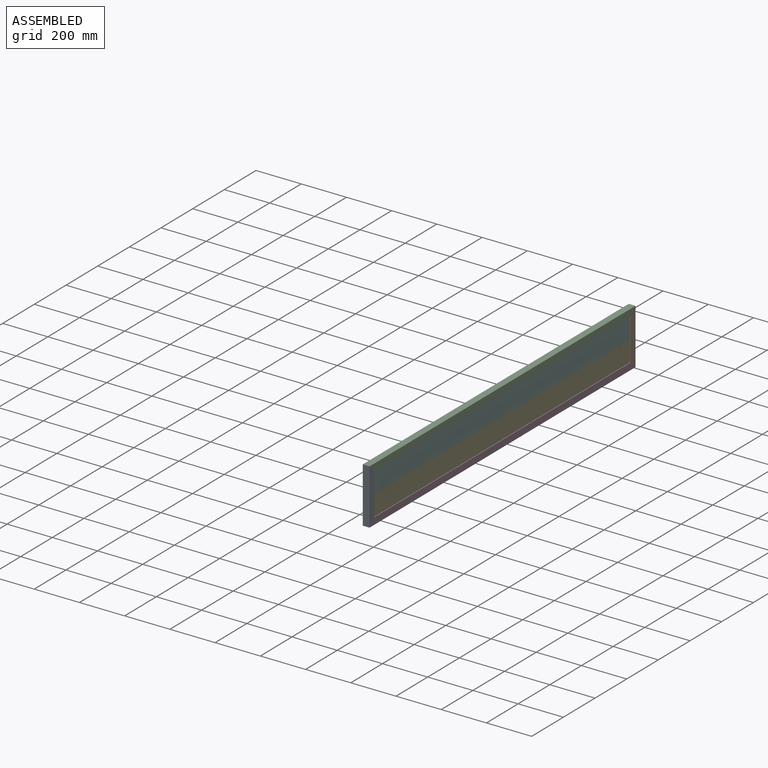
[diagram: assembled view]
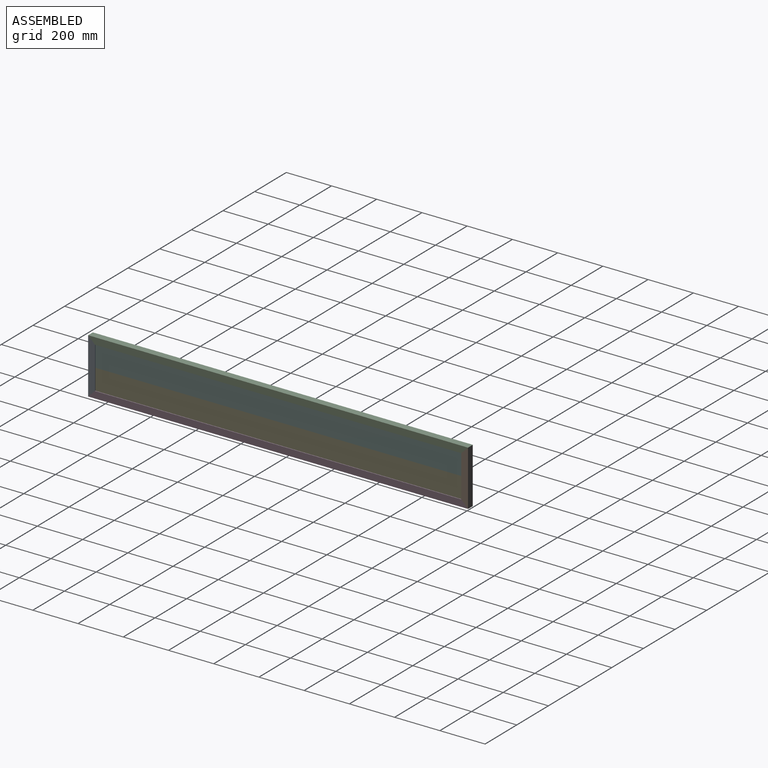
[diagram: assembled view, second angle]
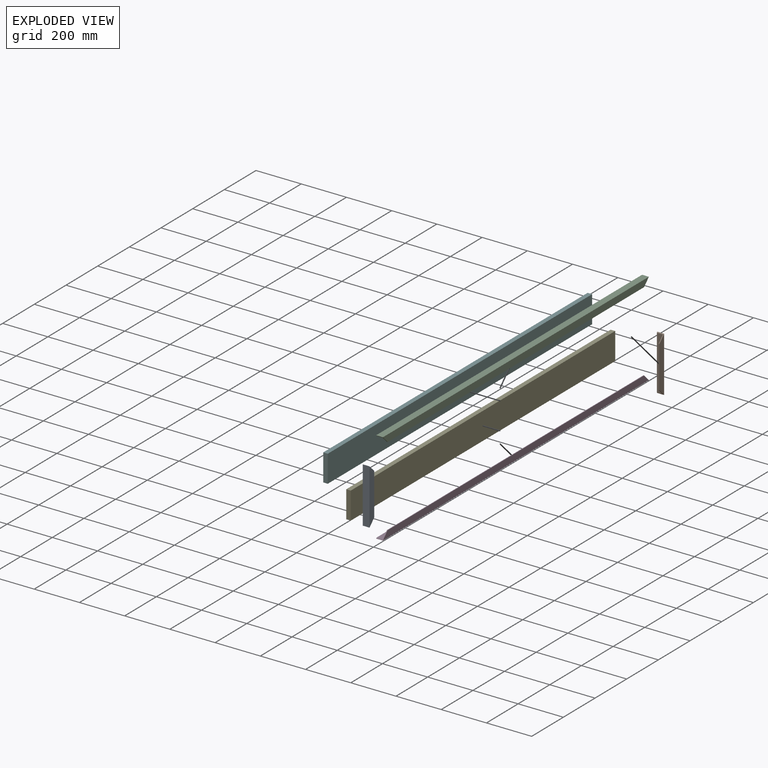
[diagram: exploded view]
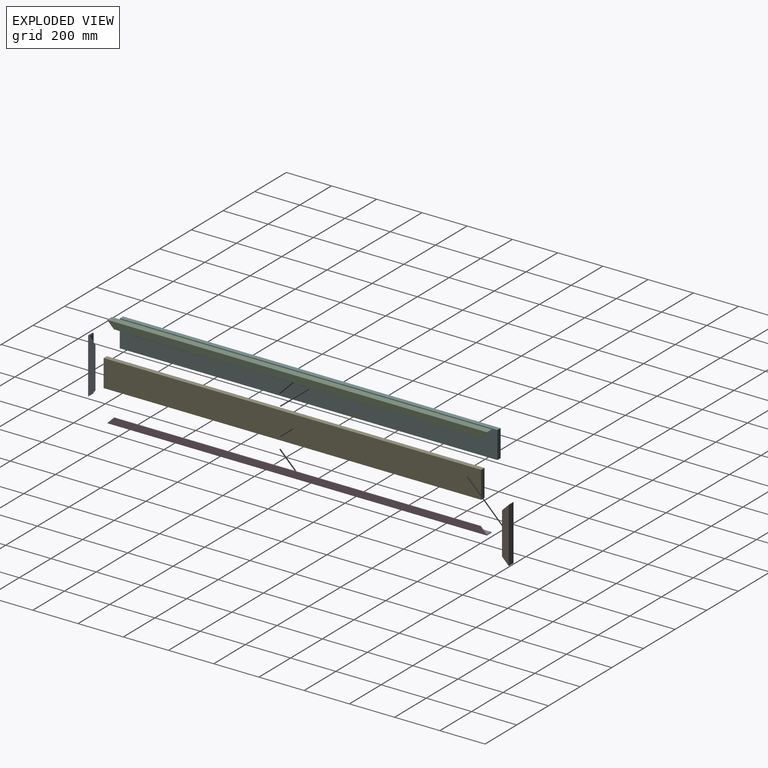
[diagram: exploded view, second angle]
ASSEMBLY  parts=6 mates=4
PART A: 8 faces, bbox 30x30x245 mm
  f0: plane 245x30mm, normal (1,0,0), area 6450mm2, adj f1,f5,f6,f7
  f1: plane 185x3mm, normal (0,1,0), area 555mm2, adj f0,f4,f6,f7
  f2: plane 239x27mm, normal (0,1,0), area 6453mm2, adj f3,f4,f6,f7
  f3: plane 245x3mm, normal (-1,0,0), area 726mm2, adj f2,f5,f6,f7
  f4: plane 239x27mm, normal (-1,0,0), area 5724mm2, adj f1,f2,f6,f7
  f5: plane 245x30mm, normal (0,-1,0), area 7350mm2, adj f0,f3,f6,f7
  f6: plane 30x30mm, normal (0,0.71,0.71), area 241.8mm2, adj f0,f1,f2,f3,f4,f5
  f7: plane 30x30mm, normal (0,0.71,-0.71), area 241.8mm2, adj f0,f1,f2,f3,f4,f5
PART B: same geometry as A
PART C: 8 faces, bbox 30x1680x30 mm
  f0: plane 1620x3mm, normal (0,0,-1), area 4860mm2, adj f1,f4,f6,f7
  f1: plane 1674x27mm, normal (-1,0,0), area 44469mm2, adj f0,f3,f6,f7
  f2: plane 1680x3mm, normal (-1,0,0), area 5031mm2, adj f3,f5,f6,f7
  f3: plane 1674x27mm, normal (0,0,-1), area 45198mm2, adj f1,f2,f6,f7
  f4: plane 1680x30mm, normal (1,0,0), area 49500mm2, adj f0,f5,f6,f7
  f5: plane 1680x30mm, normal (0,0,1), area 50400mm2, adj f2,f4,f6,f7
  f6: plane 30x30mm, normal (0,-0.71,-0.71), area 241.8mm2, adj f0,f1,f2,f3,f4,f5
  f7: plane 30x30mm, normal (0,0.71,-0.71), area 241.8mm2, adj f0,f1,f2,f3,f4,f5
PART D: same geometry as C
PART E: 6 faces, bbox 20x1670x120 mm
  f0: plane 1670x20mm, normal (0,0,1), area 33400mm2, adj f1,f3,f4,f5
  f1: plane 1670x120mm, normal (-1,0,0), area 200400mm2, adj f0,f2,f4,f5
  f2: plane 1670x20mm, normal (0,0,-1), area 33400mm2, adj f1,f3,f4,f5
  f3: plane 1670x120mm, normal (1,0,0), area 200400mm2, adj f0,f2,f4,f5
  f4: plane 120x20mm, normal (0,1,0), area 2400mm2, adj f0,f1,f2,f3
  f5: plane 120x20mm, normal (0,-1,0), area 2400mm2, adj f0,f1,f2,f3
PART F: same geometry as E
PLACE A t=(541.81,-392.5,-116.48)mm
PLACE B rot(axis=(1,0,0),180deg) t=(541.81,806.23,128.52)mm
PLACE C t=(577,-633.14,238.14)mm
PLACE D rot(axis=(-1,0,0),180deg) t=(577,1046.86,-226.1)mm
PLACE E t=(667.43,-626.14,73.3)mm
PLACE F t=(667.43,-626.14,193.3)mm
MATE fastened B.f7 <-> C.f7  axis (0,-0.71,0.71) through (343.14,1043.86,125.52)mm
MATE fastened E.f0 <-> F.f2  axis (0,0,1) through (343.14,1043.86,5.52)mm
MATE fastened A.f6 <-> C.f6  axis (0,0.71,0.71) through (343.14,-630.14,125.52)mm
MATE fastened D.f7 <-> A.f7  axis (0,-0.71,0.71) through (343.14,-630.14,-113.48)mm
